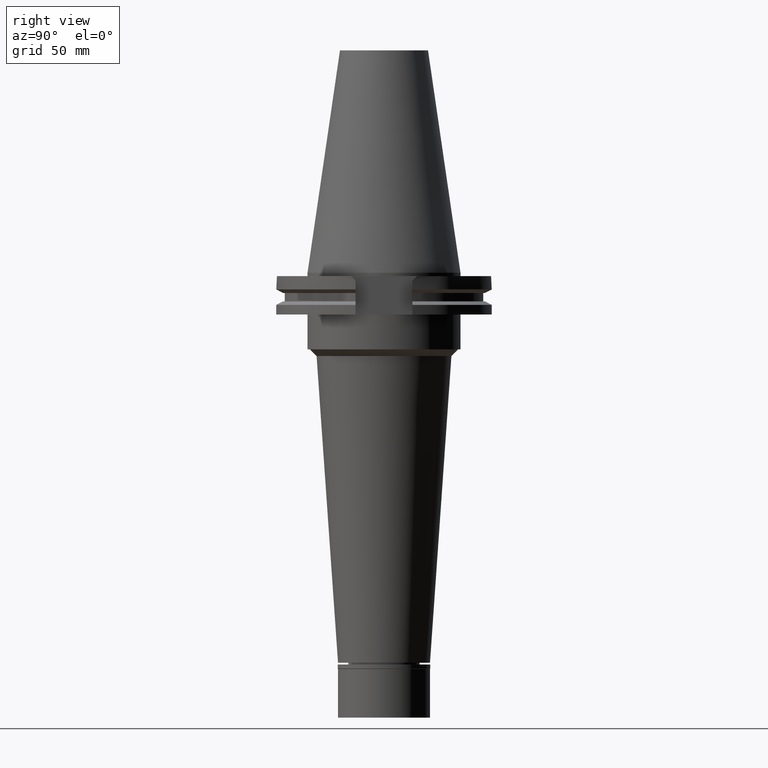
[diagram: clean part render]
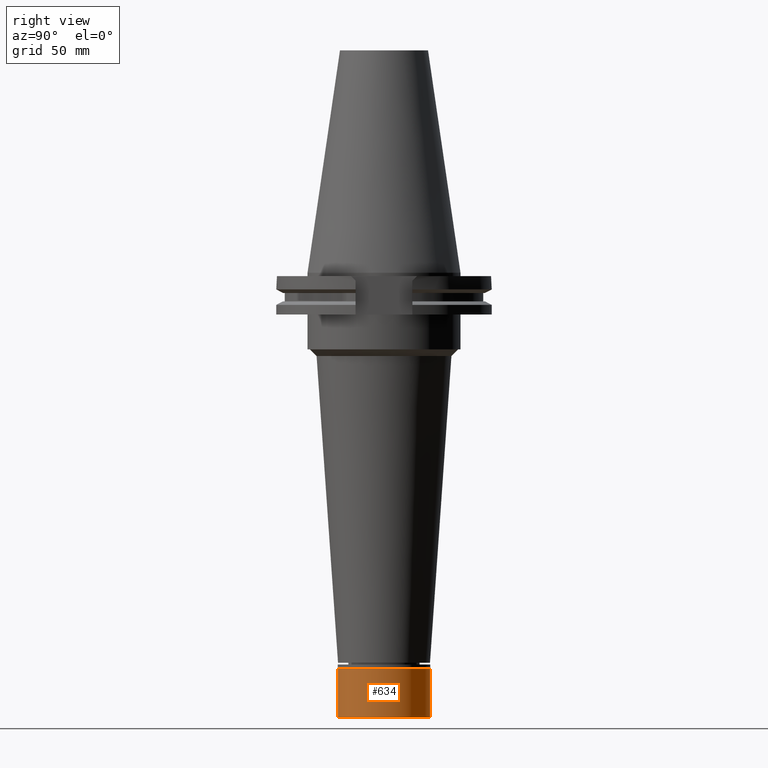
[diagram: same view with one face highlighted and labeled with its STEP entity id]
A machine part, right view. The second image highlights one B-rep face of the part: STEP entity #634.
In plain terms, the highlighted cylindrical surface (partial cylindrical patch) has radius 21 mm, axis along (0, 0, -1).
Its self-contained STEP definition (entity closure, byte-faithful):
#21 = ORIENTED_EDGE ( 'NONE', *, *, #1822, .F. ) ;
#182 = AXIS2_PLACEMENT_3D ( 'NONE', #3210, #1710, #2213 ) ;
#190 = VERTEX_POINT ( 'NONE', #1991 ) ;
#305 = AXIS2_PLACEMENT_3D ( 'NONE', #1368, #1861, #3110 ) ;
#408 = CARTESIAN_POINT ( 'NONE',  ( 0.0000000000000000000, -21.00000000000000000, -2.000000000000000000 ) ) ;
#456 = EDGE_CURVE ( 'NONE', #2308, #1251, #2240, .T. ) ;
#493 = VERTEX_POINT ( 'NONE', #408 ) ;
#527 = VECTOR ( 'NONE', #2532, 1000.000000000000000 ) ;
#563 = ORIENTED_EDGE ( 'NONE', *, *, #612, .T. ) ;
#612 = EDGE_CURVE ( 'NONE', #493, #2308, #1077, .T. ) ;
#634 = ADVANCED_FACE ( 'NONE', ( #2124 ), #1577, .T. ) ;
#804 = DIRECTION ( 'NONE',  ( 0.0000000000000000000, 0.0000000000000000000, -1.000000000000000000 ) ) ;
#920 = EDGE_LOOP ( 'NONE', ( #3274, #563, #2828, #21 ) ) ;
#992 = DIRECTION ( 'NONE',  ( 0.0000000000000000000, 1.000000000000000000, 0.0000000000000000000 ) ) ;
#1077 = LINE ( 'NONE', #1490, #527 ) ;
#1183 = CARTESIAN_POINT ( 'NONE',  ( 0.0000000000000000000, 21.00000000000000000, -24.29999999999999716 ) ) ;
#1251 = VERTEX_POINT ( 'NONE', #1183 ) ;
#1368 = CARTESIAN_POINT ( 'NONE',  ( 0.0000000000000000000, 0.0000000000000000000, 0.0000000000000000000 ) ) ;
#1490 = CARTESIAN_POINT ( 'NONE',  ( 0.0000000000000000000, -21.00000000000000000, -2.000000000000000000 ) ) ;
#1540 = LINE ( 'NONE', #3103, #1665 ) ;
#1546 = DIRECTION ( 'NONE',  ( 0.0000000000000000000, 0.0000000000000000000, -1.000000000000000000 ) ) ;
#1577 = CYLINDRICAL_SURFACE ( 'NONE', #305, 21.00000000000000000 ) ;
#1641 = AXIS2_PLACEMENT_3D ( 'NONE', #2571, #1546, #992 ) ;
#1665 = VECTOR ( 'NONE', #804, 1000.000000000000000 ) ;
#1695 = CIRCLE ( 'NONE', #1641, 21.00000000000000000 ) ;
#1710 = DIRECTION ( 'NONE',  ( 0.0000000000000000000, 0.0000000000000000000, 1.000000000000000000 ) ) ;
#1822 = EDGE_CURVE ( 'NONE', #190, #1251, #1540, .T. ) ;
#1861 = DIRECTION ( 'NONE',  ( 0.0000000000000000000, 0.0000000000000000000, -1.000000000000000000 ) ) ;
#1991 = CARTESIAN_POINT ( 'NONE',  ( 0.0000000000000000000, 21.00000000000000000, -2.000000000000000000 ) ) ;
#2124 = FACE_OUTER_BOUND ( 'NONE', #920, .T. ) ;
#2213 = DIRECTION ( 'NONE',  ( 0.0000000000000000000, -1.000000000000000000, 0.0000000000000000000 ) ) ;
#2240 = CIRCLE ( 'NONE', #182, 21.00000000000000000 ) ;
#2308 = VERTEX_POINT ( 'NONE', #2964 ) ;
#2532 = DIRECTION ( 'NONE',  ( 0.0000000000000000000, 0.0000000000000000000, -1.000000000000000000 ) ) ;
#2571 = CARTESIAN_POINT ( 'NONE',  ( 0.0000000000000000000, 0.0000000000000000000, -2.000000000000000000 ) ) ;
#2828 = ORIENTED_EDGE ( 'NONE', *, *, #456, .T. ) ;
#2903 = EDGE_CURVE ( 'NONE', #190, #493, #1695, .T. ) ;
#2964 = CARTESIAN_POINT ( 'NONE',  ( 0.0000000000000000000, -21.00000000000000000, -24.29999999999999716 ) ) ;
#3103 = CARTESIAN_POINT ( 'NONE',  ( 0.0000000000000000000, 21.00000000000000000, -2.000000000000000000 ) ) ;
#3110 = DIRECTION ( 'NONE',  ( 0.0000000000000000000, -1.000000000000000000, 0.0000000000000000000 ) ) ;
#3210 = CARTESIAN_POINT ( 'NONE',  ( 0.0000000000000000000, 0.0000000000000000000, -24.29999999999999716 ) ) ;
#3274 = ORIENTED_EDGE ( 'NONE', *, *, #2903, .T. ) ;